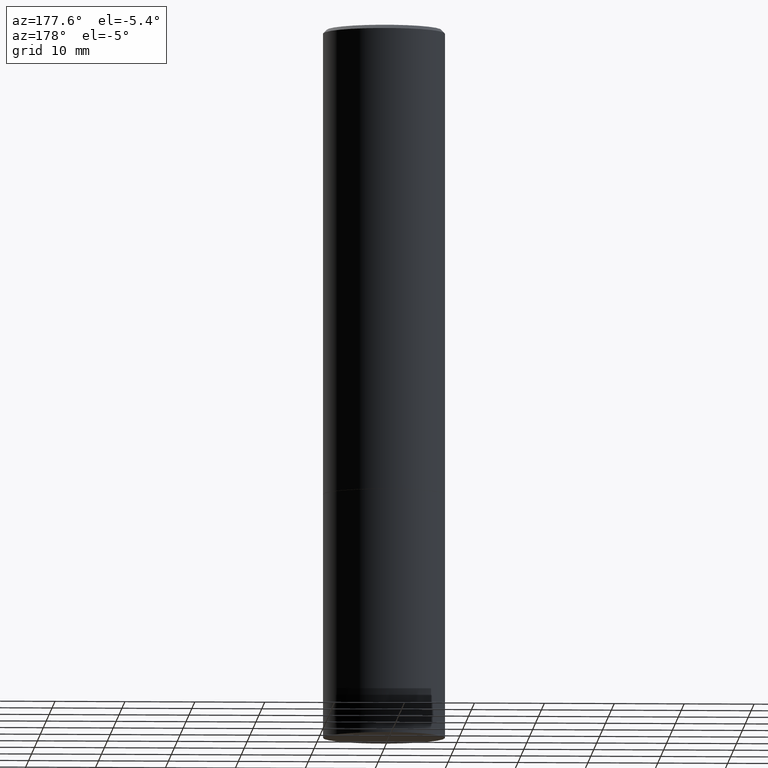
[diagram: clean part render]
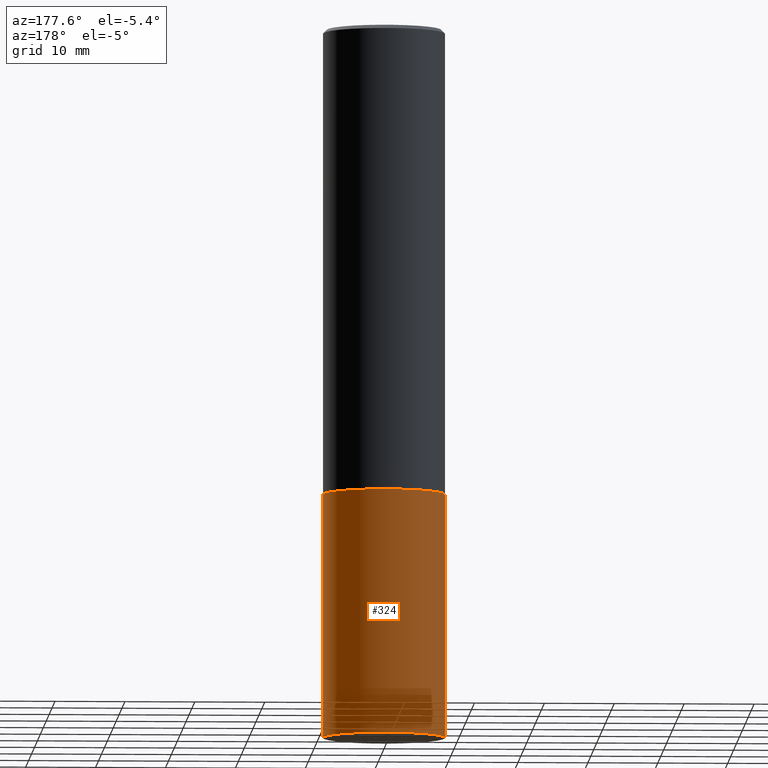
[diagram: same view with one face highlighted and labeled with its STEP entity id]
A machine part, auxiliary view. The second image highlights one B-rep face of the part: STEP entity #324.
In plain terms, the highlighted cylindrical surface (partial cylindrical patch) has radius 8.7312 mm, axis along (-0, 0, 1).
Its self-contained STEP definition (entity closure, byte-faithful):
#6 = EDGE_CURVE ( 'NONE', #372, #180, #163, .T. ) ;
#38 = EDGE_LOOP ( 'NONE', ( #367, #175, #290, #189 ) ) ;
#57 = DIRECTION ( 'NONE',  ( -2.445468806185136877E-29, 3.491481338843145188E-15, 1.000000000000000000 ) ) ;
#71 = VERTEX_POINT ( 'NONE', #81 ) ;
#80 = AXIS2_PLACEMENT_3D ( 'NONE', #195, #373, #317 ) ;
#81 = CARTESIAN_POINT ( 'NONE',  ( 0.3437500000000000000, -1.156553193491791158E-14, -2.625000000000000000 ) ) ;
#90 = LINE ( 'NONE', #361, #187 ) ;
#94 = DIRECTION ( 'NONE',  ( -2.445468806185136597E-29, 3.491481338843145583E-15, 1.000000000000000000 ) ) ;
#122 = FACE_OUTER_BOUND ( 'NONE', #38, .T. ) ;
#133 = AXIS2_PLACEMENT_3D ( 'NONE', #179, #94, #218 ) ;
#137 = VECTOR ( 'NONE', #336, 39.37007874015748143 ) ;
#144 = DIRECTION ( 'NONE',  ( 1.000000000000000000, -6.982962677686269077E-15, 0.000000000000000000 ) ) ;
#156 = CARTESIAN_POINT ( 'NONE',  ( -0.3437500000000006661, -1.156553193491792420E-14, -4.000000000000000000 ) ) ;
#158 = CYLINDRICAL_SURFACE ( 'NONE', #133, 0.3437500000000000000 ) ;
#163 = CIRCLE ( 'NONE', #238, 0.3437500000000000000 ) ;
#174 = CARTESIAN_POINT ( 'NONE',  ( 9.781875224740546387E-29, -1.396592535537258233E-14, -4.000000000000000000 ) ) ;
#175 = ORIENTED_EDGE ( 'NONE', *, *, #289, .T. ) ;
#179 = CARTESIAN_POINT ( 'NONE',  ( 0.000000000000000000, 0.000000000000000000, 0.000000000000000000 ) ) ;
#180 = VERTEX_POINT ( 'NONE', #156 ) ;
#187 = VECTOR ( 'NONE', #57, 39.37007874015748143 ) ;
#189 = ORIENTED_EDGE ( 'NONE', *, *, #258, .F. ) ;
#195 = CARTESIAN_POINT ( 'NONE',  ( 6.419355616235983567E-29, -9.165138514463256612E-15, -2.625000000000000000 ) ) ;
#218 = DIRECTION ( 'NONE',  ( 1.000000000000000000, -6.982962677686265922E-15, 4.876176775795935793E-29 ) ) ;
#220 = EDGE_CURVE ( 'NONE', #71, #267, #270, .T. ) ;
#238 = AXIS2_PLACEMENT_3D ( 'NONE', #174, #381, #144 ) ;
#258 = EDGE_CURVE ( 'NONE', #372, #71, #278, .T. ) ;
#267 = VERTEX_POINT ( 'NONE', #390 ) ;
#270 = CIRCLE ( 'NONE', #80, 0.3437500000000000000 ) ;
#278 = LINE ( 'NONE', #341, #137 ) ;
#289 = EDGE_CURVE ( 'NONE', #180, #267, #90, .T. ) ;
#290 = ORIENTED_EDGE ( 'NONE', *, *, #220, .F. ) ;
#317 = DIRECTION ( 'NONE',  ( 1.000000000000000000, -6.982962677686269077E-15, 0.000000000000000000 ) ) ;
#324 = ADVANCED_FACE ( 'NONE', ( #122 ), #158, .T. ) ;
#331 = CARTESIAN_POINT ( 'NONE',  ( 0.3437500000000006661, -1.632422154210654946E-14, -4.000000000000000000 ) ) ;
#336 = DIRECTION ( 'NONE',  ( -2.445468806185136877E-29, 3.491481338843145188E-15, 1.000000000000000000 ) ) ;
#341 = CARTESIAN_POINT ( 'NONE',  ( 0.3437500000000000000, -2.400393420454653787E-15, 1.676185766679852859E-29 ) ) ;
#361 = CARTESIAN_POINT ( 'NONE',  ( -0.3437500000000000000, 2.442490654175344389E-15, -1.690883937275123635E-29 ) ) ;
#367 = ORIENTED_EDGE ( 'NONE', *, *, #6, .T. ) ;
#372 = VERTEX_POINT ( 'NONE', #331 ) ;
#373 = DIRECTION ( 'NONE',  ( -2.445468806185136597E-29, 3.491481338843145583E-15, 1.000000000000000000 ) ) ;
#381 = DIRECTION ( 'NONE',  ( -2.445468806185136597E-29, 3.491481338843145583E-15, 1.000000000000000000 ) ) ;
#390 = CARTESIAN_POINT ( 'NONE',  ( -0.3437500000000000000, -9.123041280742575082E-15, -2.625000000000000000 ) ) ;